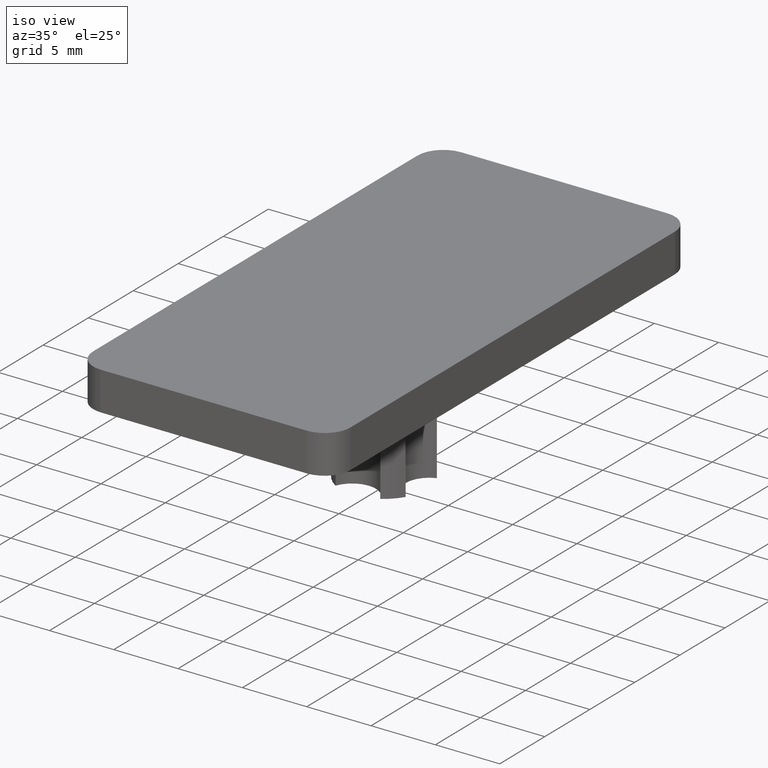
[diagram: clean part render]
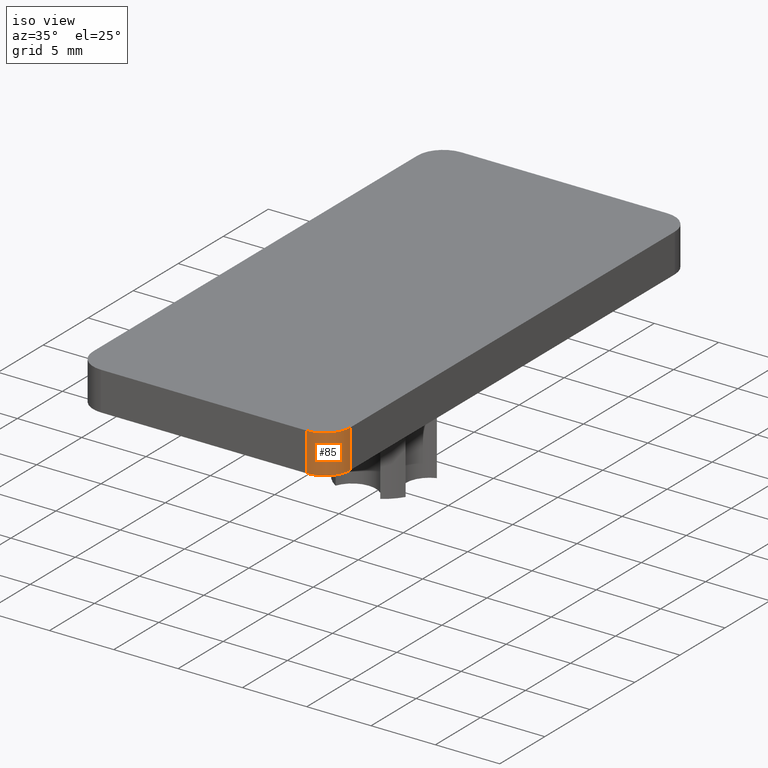
[diagram: same view with one face highlighted and labeled with its STEP entity id]
A machine part, iso view. The second image highlights one B-rep face of the part: STEP entity #85.
In plain terms, the highlighted cylindrical surface (edge-blend (fillet) strip) has radius 2 mm, axis along (-0, 0, 1).
Its self-contained STEP definition (entity closure, byte-faithful):
#44=CARTESIAN_POINT('',(17.999999999999993,-18.000000000000004,-9.999998E-009));
#45=DIRECTION('',(-1.224647E-016,0.0,1.0));
#46=DIRECTION('',(-0.707106781186547,0.707106781186548,-8.659561E-017));
#47=AXIS2_PLACEMENT_3D('',#44,#45,#46);
#48=CYLINDRICAL_SURFACE('',#47,2.000000000000001);
#49=CARTESIAN_POINT('',(19.999999999999986,-17.999999999999996,3.000000000000003));
#50=VERTEX_POINT('',#49);
#51=CARTESIAN_POINT('',(17.999999999999986,-19.999999999999996,3.000000000000002));
#52=VERTEX_POINT('',#51);
#53=CARTESIAN_POINT('',(17.999999999999986,-17.999999999999996,3.000000000000002));
#54=DIRECTION('',(1.224647E-016,0.0,-1.0));
#55=DIRECTION('',(-1.0,0.0,-1.224647E-016));
#56=AXIS2_PLACEMENT_3D('',#53,#54,#55);
#57=CIRCLE('',#56,2.000000000000001);
#58=EDGE_CURVE('',#50,#52,#57,.T.);
#59=ORIENTED_EDGE('',*,*,#58,.T.);
#60=CARTESIAN_POINT('',(17.999999999999986,-19.999999999999996,2.204364E-015));
#61=VERTEX_POINT('',#60);
#62=CARTESIAN_POINT('',(17.999999999999986,-19.999999999999996,2.204364E-015));
#63=DIRECTION('',(0.0,0.0,1.0));
#64=VECTOR('',#63,3.0);
#65=LINE('',#62,#64);
#66=EDGE_CURVE('',#61,#52,#65,.T.);
#67=ORIENTED_EDGE('',*,*,#66,.F.);
#68=CARTESIAN_POINT('',(19.999999999999986,-17.999999999999996,2.449294E-015));
#69=VERTEX_POINT('',#68);
#70=CARTESIAN_POINT('',(17.999999999999986,-17.999999999999996,2.204364E-015));
#71=DIRECTION('',(1.224647E-016,0.0,-1.0));
#72=DIRECTION('',(-1.0,0.0,-1.224647E-016));
#73=AXIS2_PLACEMENT_3D('',#70,#71,#72);
#74=CIRCLE('',#73,2.000000000000001);
#75=EDGE_CURVE('',#69,#61,#74,.T.);
#76=ORIENTED_EDGE('',*,*,#75,.F.);
#77=CARTESIAN_POINT('',(19.999999999999986,-17.999999999999996,2.449294E-015));
#78=DIRECTION('',(0.0,0.0,1.0));
#79=VECTOR('',#78,3.0);
#80=LINE('',#77,#79);
#81=EDGE_CURVE('',#69,#50,#80,.T.);
#82=ORIENTED_EDGE('',*,*,#81,.T.);
#83=EDGE_LOOP('',(#59,#67,#76,#82));
#84=FACE_OUTER_BOUND('',#83,.T.);
#85=ADVANCED_FACE('',(#84),#48,.T.);